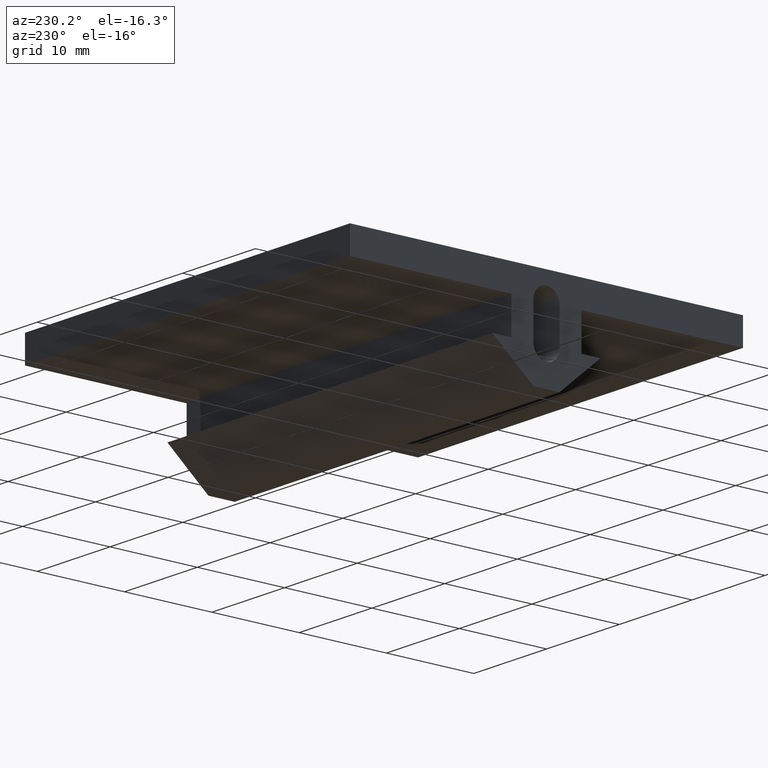
[diagram: clean part render]
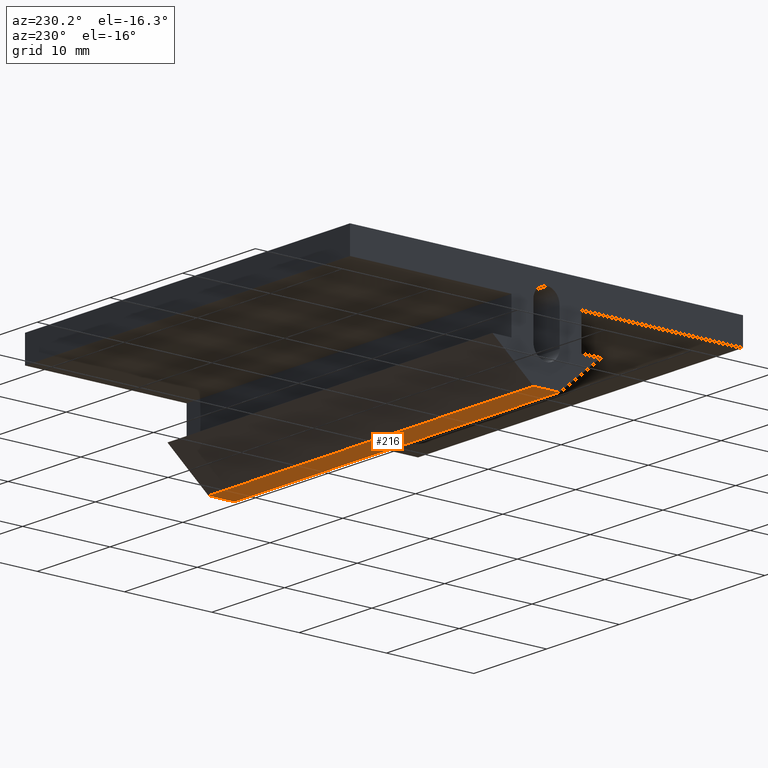
[diagram: same view with one face highlighted and labeled with its STEP entity id]
A machine part, auxiliary view. The second image highlights one B-rep face of the part: STEP entity #216.
In plain terms, the highlighted planar face has unit normal (0, 0, 1).
Its self-contained STEP definition (entity closure, byte-faithful):
#10 = VERTEX_POINT ( 'NONE', #289 ) ;
#15 = VERTEX_POINT ( 'NONE', #150 ) ;
#17 = EDGE_CURVE ( 'NONE', #10, #15, #147, .T. ) ;
#20 = ORIENTED_EDGE ( 'NONE', *, *, #23, .T. ) ;
#22 = ORIENTED_EDGE ( 'NONE', *, *, #220, .F. ) ;
#23 = EDGE_CURVE ( 'NONE', #15, #218, #281, .T. ) ;
#25 = ORIENTED_EDGE ( 'NONE', *, *, #26, .F. ) ;
#26 = EDGE_CURVE ( 'NONE', #10, #210, #254, .T. ) ;
#144 = DIRECTION ( 'NONE',  ( -1.000000000000000000, -0.0000000000000000000, -0.0000000000000000000 ) ) ;
#145 = VECTOR ( 'NONE', #144, 1000.000000000000000 ) ;
#146 = CARTESIAN_POINT ( 'NONE',  ( 44.66704193895279200, -1.499999999999998700, -11.00000000000000000 ) ) ;
#147 = LINE ( 'NONE', #146, #145 ) ;
#150 = CARTESIAN_POINT ( 'NONE',  ( 0.0000000000000000000, -1.499999999999998700, -11.00000000000000000 ) ) ;
#175 = ORIENTED_EDGE ( 'NONE', *, *, #17, .T. ) ;
#210 = VERTEX_POINT ( 'NONE', #385 ) ;
#216 = ADVANCED_FACE ( 'NONE', ( #374 ), #373, .F. ) ;
#217 = EDGE_LOOP ( 'NONE', ( #20, #22, #25, #175 ) ) ;
#218 = VERTEX_POINT ( 'NONE', #368 ) ;
#220 = EDGE_CURVE ( 'NONE', #210, #218, #367, .T. ) ;
#251 = DIRECTION ( 'NONE',  ( 0.0000000000000000000, 1.000000000000000000, 0.0000000000000000000 ) ) ;
#252 = VECTOR ( 'NONE', #251, 1000.000000000000000 ) ;
#253 = CARTESIAN_POINT ( 'NONE',  ( 44.66704193895279200, -1.499999999999998700, -11.00000000000000000 ) ) ;
#254 = LINE ( 'NONE', #253, #252 ) ;
#278 = DIRECTION ( 'NONE',  ( 0.0000000000000000000, 1.000000000000000000, 0.0000000000000000000 ) ) ;
#279 = VECTOR ( 'NONE', #278, 1000.000000000000000 ) ;
#280 = CARTESIAN_POINT ( 'NONE',  ( 0.0000000000000000000, -1.499999999999998700, -11.00000000000000000 ) ) ;
#281 = LINE ( 'NONE', #280, #279 ) ;
#289 = CARTESIAN_POINT ( 'NONE',  ( 44.66704193895279200, -1.499999999999998700, -11.00000000000000000 ) ) ;
#364 = DIRECTION ( 'NONE',  ( -1.000000000000000000, -0.0000000000000000000, -0.0000000000000000000 ) ) ;
#365 = VECTOR ( 'NONE', #364, 1000.000000000000000 ) ;
#366 = CARTESIAN_POINT ( 'NONE',  ( 44.66704193895279200, 1.500000000000001300, -11.00000000000000000 ) ) ;
#367 = LINE ( 'NONE', #366, #365 ) ;
#368 = CARTESIAN_POINT ( 'NONE',  ( 0.0000000000000000000, 1.500000000000001300, -11.00000000000000000 ) ) ;
#369 = DIRECTION ( 'NONE',  ( 1.000000000000000000, 0.0000000000000000000, -0.0000000000000000000 ) ) ;
#370 = DIRECTION ( 'NONE',  ( 0.0000000000000000000, 0.0000000000000000000, 1.000000000000000000 ) ) ;
#371 = CARTESIAN_POINT ( 'NONE',  ( 44.66704193895279200, -1.499999999999998700, -11.00000000000000000 ) ) ;
#372 = AXIS2_PLACEMENT_3D ( 'NONE', #371, #370, #369 ) ;
#373 = PLANE ( 'NONE',  #372 ) ;
#374 = FACE_OUTER_BOUND ( 'NONE', #217, .T. ) ;
#385 = CARTESIAN_POINT ( 'NONE',  ( 44.66704193895279200, 1.500000000000001300, -11.00000000000000000 ) ) ;